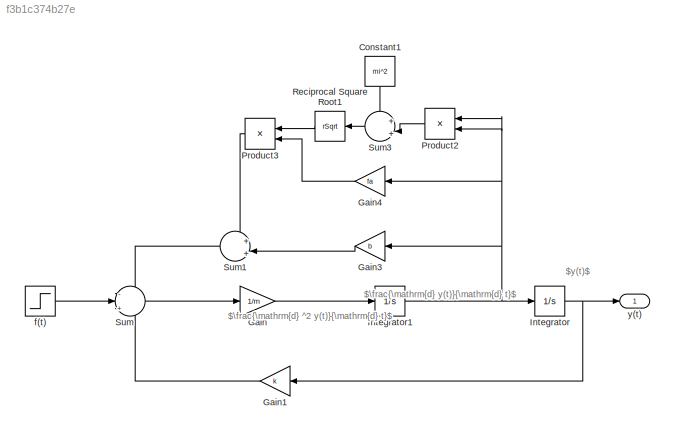
MODEL slx_f3b1c374b27e
KIND model
CONFIG AbsTol = auto
CONFIG EnableMultiTasking = off
CONFIG FixedStep = auto
CONFIG MaxStep = auto
CONFIG MinStep = auto
CONFIG RelTol = 1e-3
CONFIG SampleTimeConstraint = Unconstrained
CONFIG SolverName = VariableStepAuto
CONFIG StartTime = 0.0
CONFIG StopTime = 0.1
BLOCK [Constant] Constant1
  NameLocation = left
  Value = mi^2
BLOCK [Gain] Gain
  Gain = 1/m
BLOCK [Gain] Gain1
  Gain = k
BLOCK [Gain] Gain3
  Gain = b
BLOCK [Gain] Gain4
  Gain = fa
  NameLocation = top
BLOCK [Integrator] Integrator
BLOCK [Integrator] Integrator1
BLOCK [Product] Product2
  NameLocation = top
BLOCK [Product] Product3
  NameLocation = top
BLOCK [Sqrt] Reciprocal Square Root1
  NameLocation = top
  Operator = rSqrt
BLOCK [Sum] Sum
  Inputs = -|+|-
BLOCK [Sum] Sum1
  Inputs = +|+||
BLOCK [Sum] Sum3
  Inputs = +|+||
BLOCK [Step] f(t)
  After = f_final
  Before = f_inicial
  SampleTime = 0
  Time = t_inicial
BLOCK [Outport] y(t)
ANNOTATION (root): $\frac{\mathrm{d} ^2 y(t)}{\mathrm{d} t}$
ANNOTATION (root): $\frac{\mathrm{d} y(t)}{\mathrm{d} t}$
ANNOTATION (root): $y(t)$
LINE Constant1:1 -> Sum3:1
LINE Gain1:1 -> Sum:3
LINE Gain3:1 -> Sum1:2
LINE Gain4:1 -> Product3:2
LINE Gain:1 -> Integrator1:1
NET Integrator1:1 -> Gain3:1, Gain4:1, Integrator:1, Product2:1, Product2:2
NET Integrator:1 -> Gain1:1, y(t):1
LINE Product2:1 -> Sum3:2
LINE Product3:1 -> Sum1:1
LINE Reciprocal Square Root1:1 -> Product3:1
LINE Sum1:1 -> Sum:1
LINE Sum3:1 -> Reciprocal Square Root1:1
LINE Sum:1 -> Gain:1
LINE f(t):1 -> Sum:2
note: NET lines group one-source signal fan-out (src -> all destinations, sorted); 1:1 wires keep LINE
